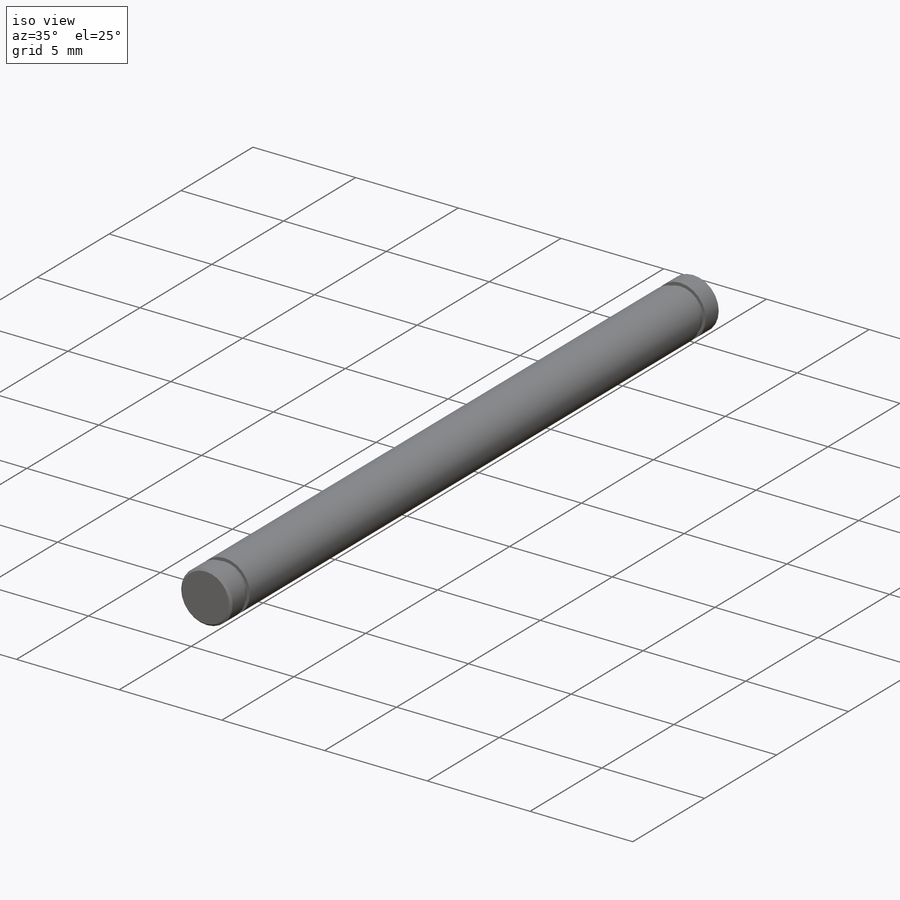
[diagram: iso view]
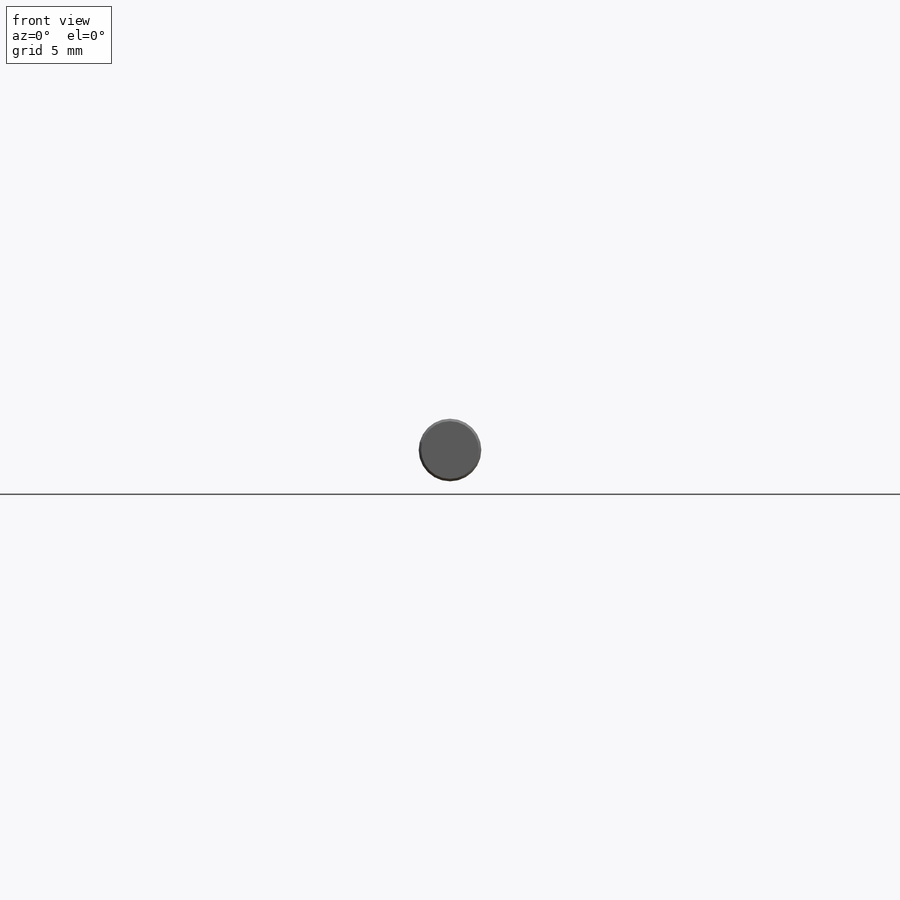
[diagram: front view]
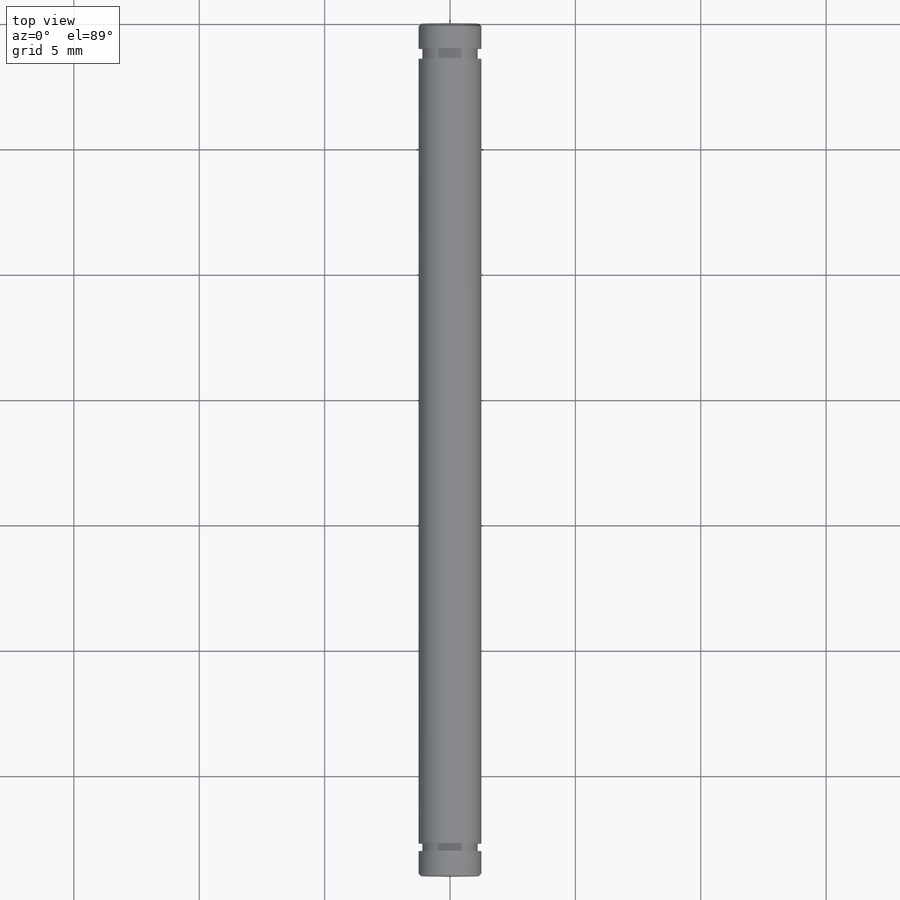
[diagram: top view]
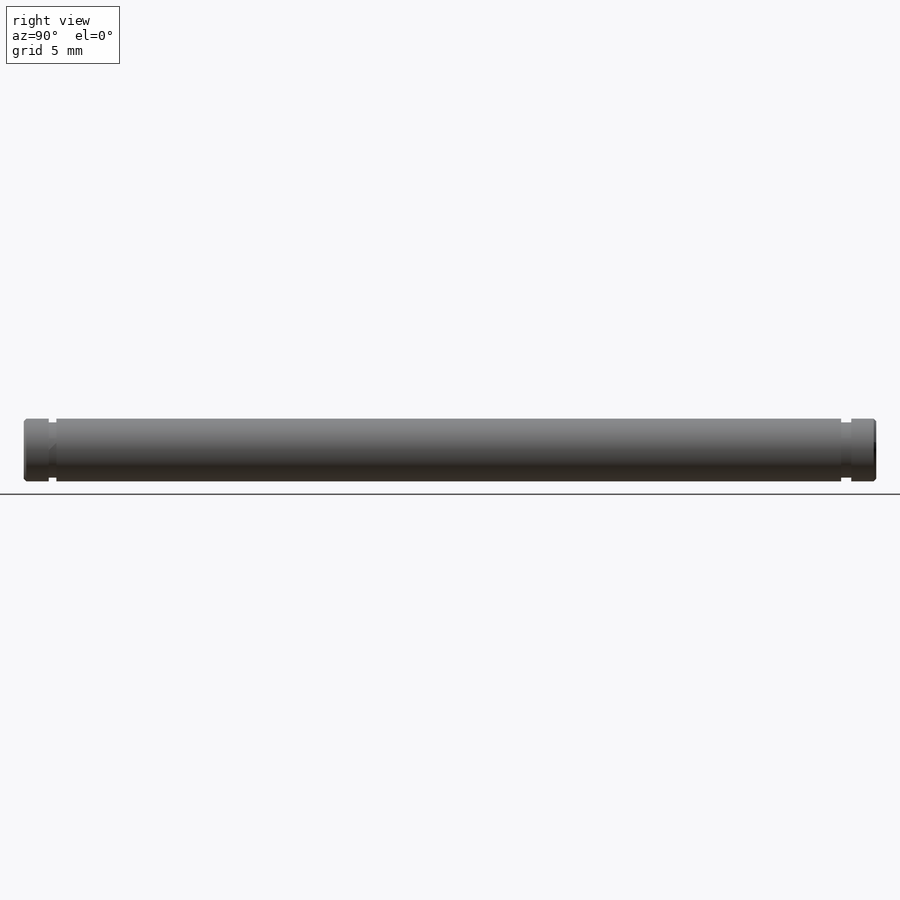
[diagram: right view]
SOLIDWORKS PART (.sldprt)
format: sldprt  version: not decoded by parser v0  size: 197,120 bytes
history: native  units: mm
features: plane x5, sketch x3, cut_extrude x2, material x1, extrude x1, chamfer x1 (+10 scaffold rows collapsed)
feature tree (23):
  scaffold x10  (default folders/planes/origin — collapsed)
  material  "材质 <未指定>"
  plane  "前视基准面"
  plane  "上视基准面"
  plane  "右视基准面"
  sketch  "草图1"  dims[D1=2.5mm]
  extrude  "凸台-拉伸1"  Depth=34mm
  plane  "基准面1"  Offset=1mm
  sketch  "草图2"  dims[D1=2.2mm]
  cut_extrude  "切除-拉伸1"  Depth=0.4mm
  plane  "基准面2"  Offset=1mm
  sketch  "草图3"  dims[D1=2.2mm]
  cut_extrude  "切除-拉伸2"  Depth=0.3mm
  chamfer  "倒角1"  Distance=0.1mm Angle=45deg
decode coverage: 7 of 7 modeling features carry decoded parameters
note: suppression state not decoded; provenance and decode notes live in map.json
